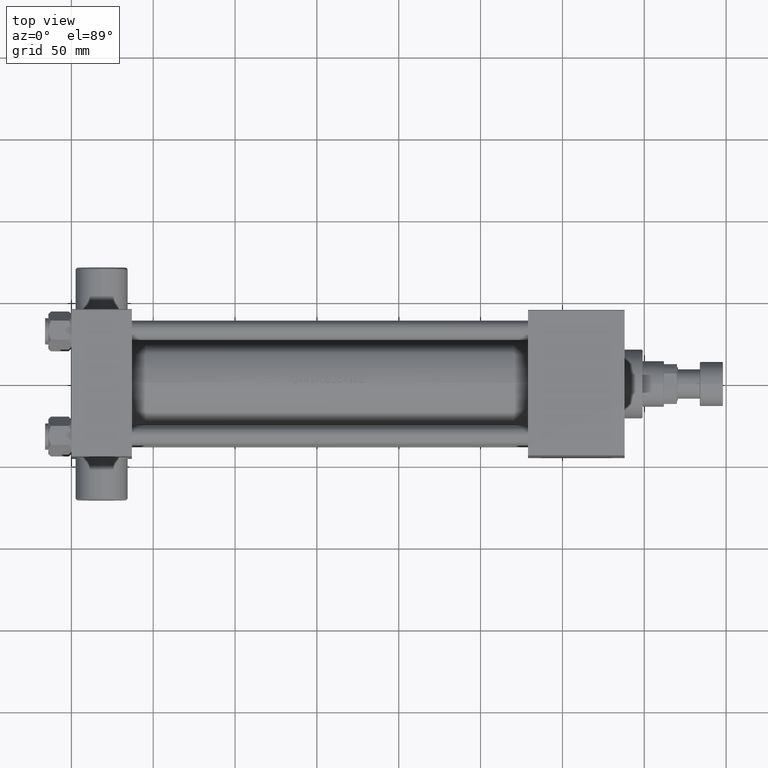
[diagram: clean part render]
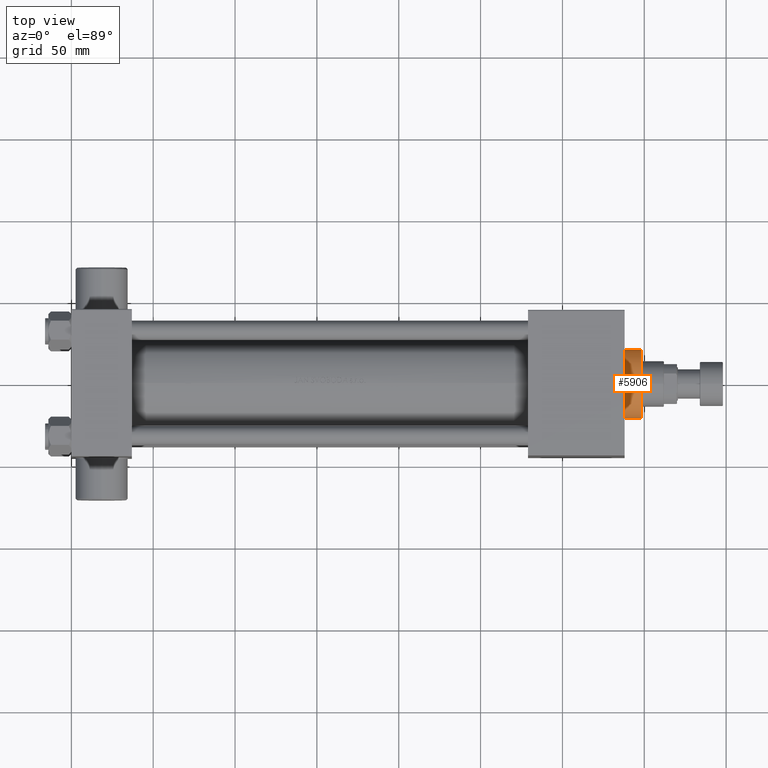
[diagram: same view with one face highlighted and labeled with its STEP entity id]
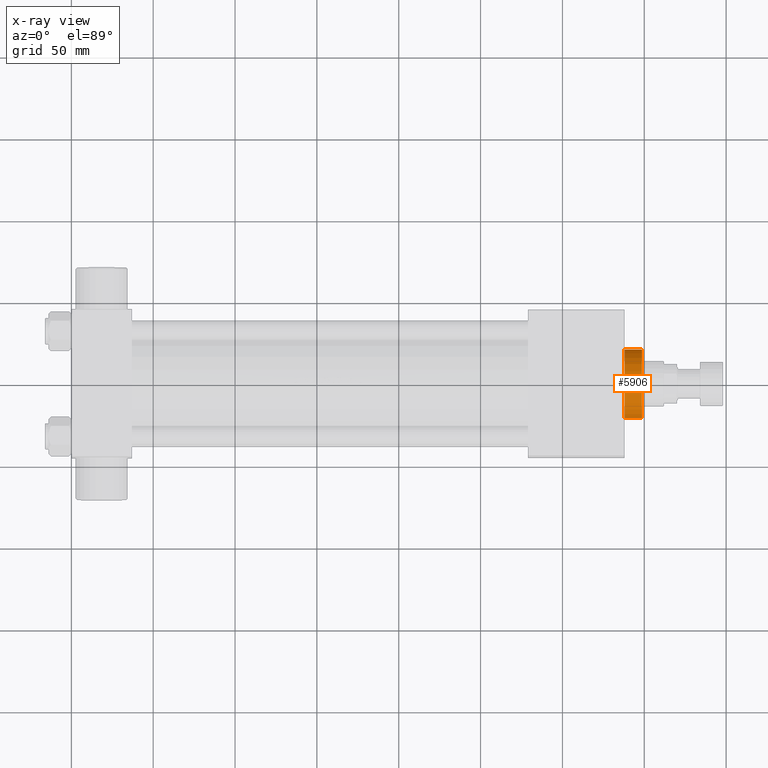
[diagram: x-ray of the same camera — body ghosted, the highlighted face saturated]
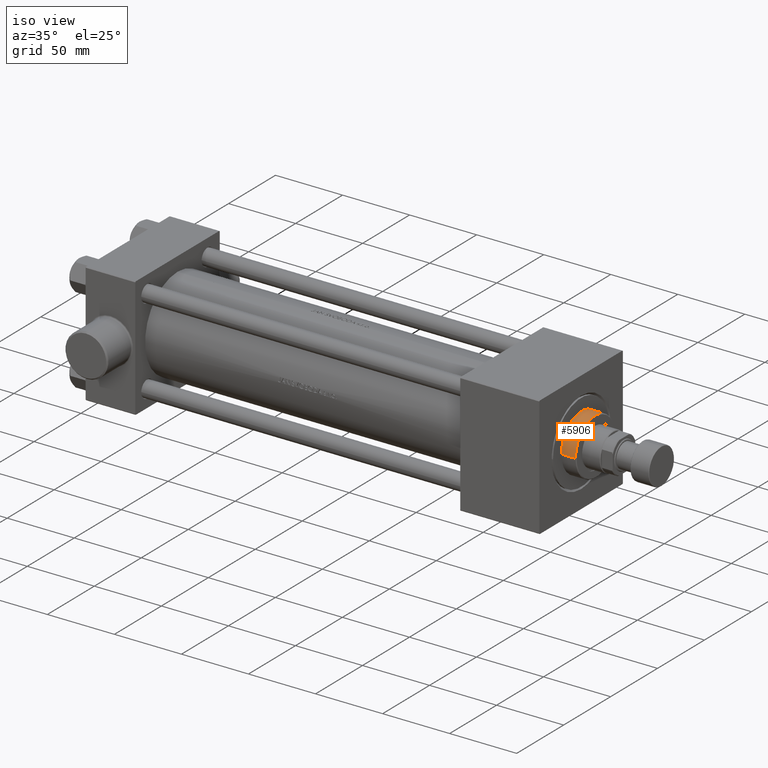
[diagram: same view with one face highlighted and labeled with its STEP entity id]
A machine part, top view. The second image highlights one B-rep face of the part: STEP entity #5906.
The next image is the same camera in x-ray: the body ghosted, the highlighted face saturated — about 0% of this face is hidden behind the body in this view.
A second angle (iso view) of the same face is appended — the face is thin or edge-on in the first view.
In plain terms, the highlighted cylindrical surface (edge-blend (fillet) strip) has radius 21 mm, axis along (-1, 0, 0).
Its self-contained STEP definition (entity closure, byte-faithful):
#497 = CARTESIAN_POINT ( 'NONE',  ( 0.000000000000000000, 0.000000000000000000, 26.69999999999999929 ) ) ;
#2457 = DIRECTION ( 'NONE',  ( -1.000000000000000000, 0.000000000000000000, 0.000000000000000000 ) ) ;
#3092 = AXIS2_PLACEMENT_3D ( 'NONE', #34385, #45718, #2457 ) ;
#4049 = DIRECTION ( 'NONE',  ( 1.000000000000000000, 0.000000000000000000, 0.000000000000000000 ) ) ;
#5151 = EDGE_CURVE ( 'NONE', #10806, #31136, #15927, .T. ) ;
#5906 = ADVANCED_FACE ( 'NONE', ( #16418 ), #27296, .T. ) ;
#7519 = ORIENTED_EDGE ( 'NONE', *, *, #39496, .T. ) ;
#8840 = DIRECTION ( 'NONE',  ( -0.000000000000000000, -0.000000000000000000, -1.000000000000000000 ) ) ;
#9262 = EDGE_LOOP ( 'NONE', ( #13950, #7519, #20465, #45117 ) ) ;
#10806 = VERTEX_POINT ( 'NONE', #42532 ) ;
#13950 = ORIENTED_EDGE ( 'NONE', *, *, #22070, .F. ) ;
#15927 = LINE ( 'NONE', #34381, #34786 ) ;
#16073 = VERTEX_POINT ( 'NONE', #42887 ) ;
#16418 = FACE_OUTER_BOUND ( 'NONE', #9262, .T. ) ;
#19648 = DIRECTION ( 'NONE',  ( 1.000000000000000000, 0.000000000000000000, 0.000000000000000000 ) ) ;
#20465 = ORIENTED_EDGE ( 'NONE', *, *, #5151, .T. ) ;
#21315 = VERTEX_POINT ( 'NONE', #45441 ) ;
#22070 = EDGE_CURVE ( 'NONE', #21315, #16073, #24006, .T. ) ;
#24006 = LINE ( 'NONE', #38176, #33622 ) ;
#27296 = CYLINDRICAL_SURFACE ( 'NONE', #3092, 21.00000000000000000 ) ;
#29109 = DIRECTION ( 'NONE',  ( 0.000000000000000000, 0.000000000000000000, 1.000000000000000000 ) ) ;
#29701 = CIRCLE ( 'NONE', #40251, 21.00000000000000000 ) ;
#30941 = EDGE_CURVE ( 'NONE', #31136, #16073, #29701, .T. ) ;
#31136 = VERTEX_POINT ( 'NONE', #37817 ) ;
#33622 = VECTOR ( 'NONE', #38413, 1000.000000000000000 ) ;
#33644 = AXIS2_PLACEMENT_3D ( 'NONE', #45630, #41379, #19648 ) ;
#34381 = CARTESIAN_POINT ( 'NONE',  ( -21.00000000000000000, 0.000000000000000000, 37.69999999999999574 ) ) ;
#34385 = CARTESIAN_POINT ( 'NONE',  ( 0.000000000000000000, 0.000000000000000000, 37.69999999999999574 ) ) ;
#34786 = VECTOR ( 'NONE', #8840, 1000.000000000000000 ) ;
#37817 = CARTESIAN_POINT ( 'NONE',  ( -21.00000000000000000, 0.000000000000000000, 26.69999999999999929 ) ) ;
#38176 = CARTESIAN_POINT ( 'NONE',  ( 21.00000000000000000, 2.571758278209441661E-15, 37.69999999999999574 ) ) ;
#38413 = DIRECTION ( 'NONE',  ( -0.000000000000000000, -0.000000000000000000, -1.000000000000000000 ) ) ;
#39496 = EDGE_CURVE ( 'NONE', #21315, #10806, #46451, .T. ) ;
#40251 = AXIS2_PLACEMENT_3D ( 'NONE', #497, #29109, #4049 ) ;
#41379 = DIRECTION ( 'NONE',  ( 0.000000000000000000, 0.000000000000000000, -1.000000000000000000 ) ) ;
#42532 = CARTESIAN_POINT ( 'NONE',  ( -21.00000000000000000, 0.000000000000000000, 37.19999999999999574 ) ) ;
#42887 = CARTESIAN_POINT ( 'NONE',  ( 21.00000000000000000, 2.571758278209441661E-15, 26.69999999999999929 ) ) ;
#45117 = ORIENTED_EDGE ( 'NONE', *, *, #30941, .T. ) ;
#45441 = CARTESIAN_POINT ( 'NONE',  ( 21.00000000000000000, 2.571758278209441661E-15, 37.19999999999999574 ) ) ;
#45630 = CARTESIAN_POINT ( 'NONE',  ( 0.000000000000000000, 0.000000000000000000, 37.19999999999999574 ) ) ;
#45718 = DIRECTION ( 'NONE',  ( -0.000000000000000000, -0.000000000000000000, -1.000000000000000000 ) ) ;
#46451 = CIRCLE ( 'NONE', #33644, 21.00000000000000000 ) ;